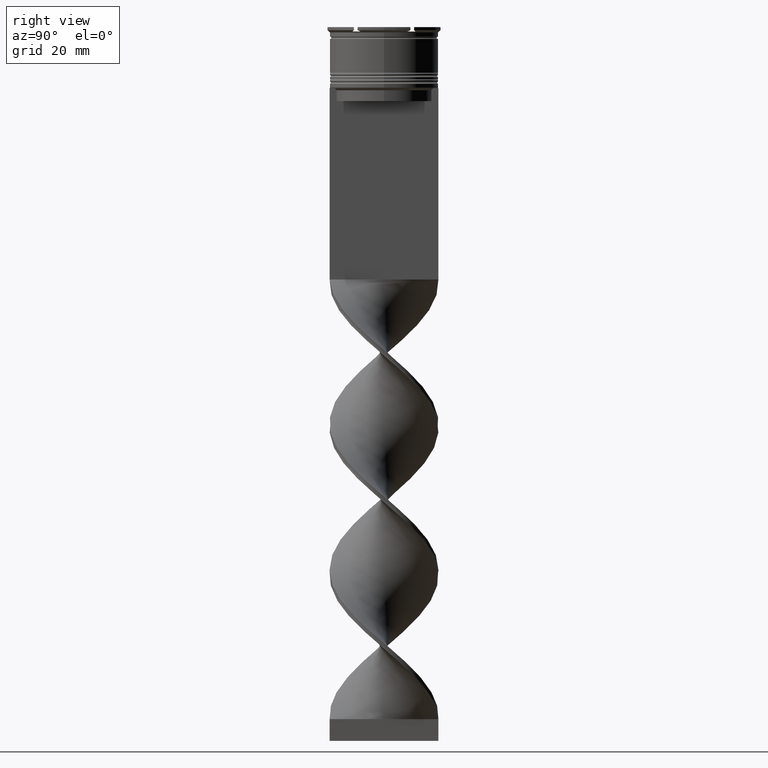
[diagram: clean part render]
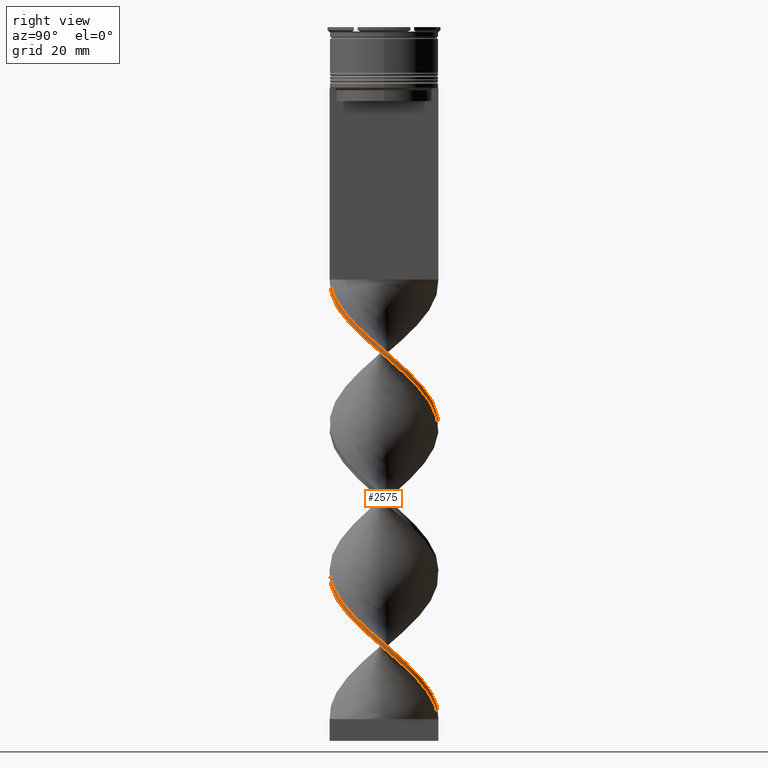
[diagram: same view with one face highlighted and labeled with its STEP entity id]
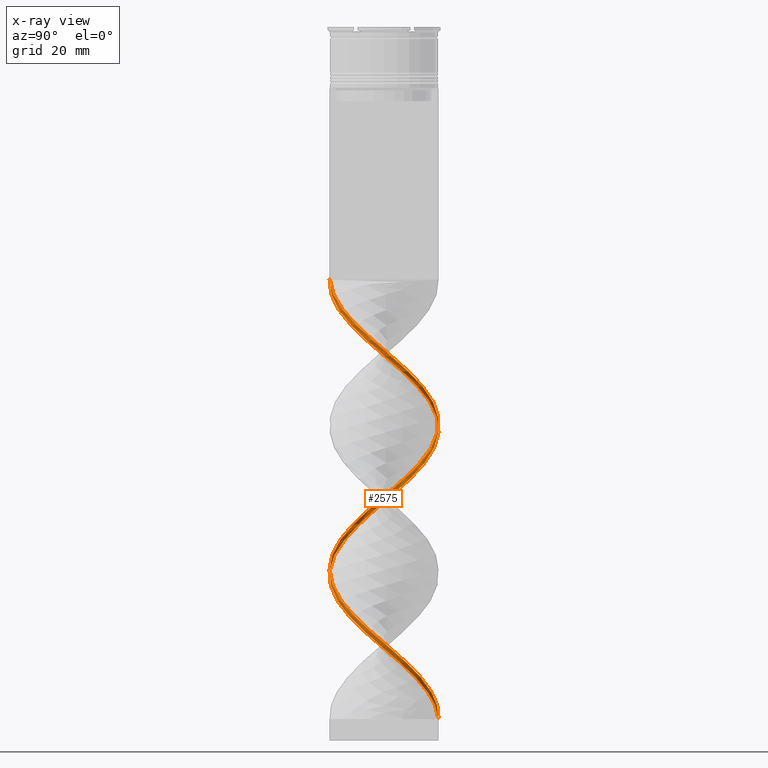
[diagram: x-ray of the same camera — body ghosted, the highlighted face saturated]
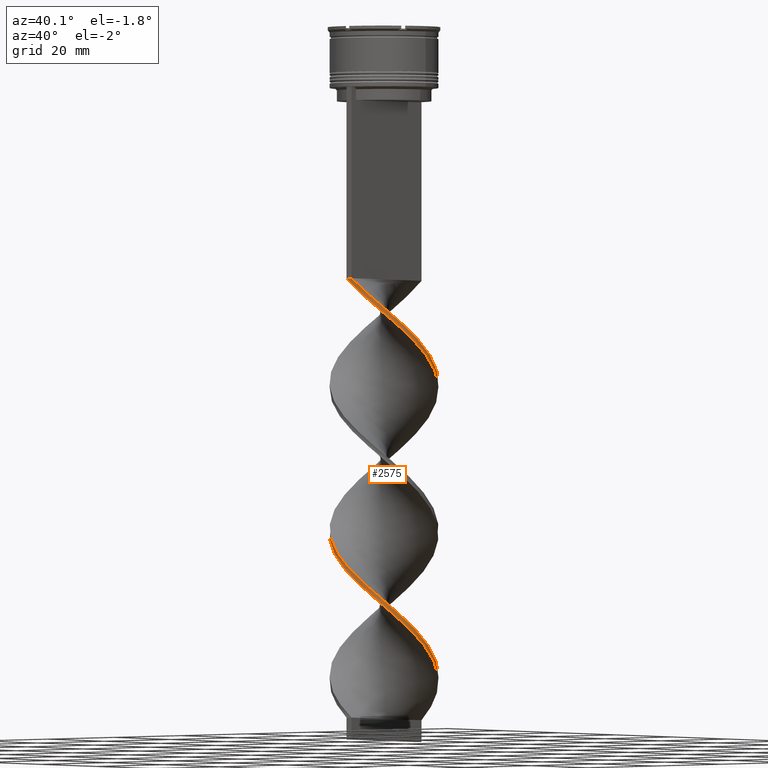
[diagram: same view with one face highlighted and labeled with its STEP entity id]
A machine part, right view. The second image highlights one B-rep face of the part: STEP entity #2575.
The next image is the same camera in x-ray: the body ghosted, the highlighted face saturated — about 1% of this face is hidden behind the body in this view.
A second angle (auxiliary view) of the same face is appended — the face is thin or edge-on in the first view.
In plain terms, the highlighted face is a freeform B-spline surface patch.
Its self-contained STEP definition (entity closure, byte-faithful):
#1 = CARTESIAN_POINT ( 'NONE',  ( -2.063802940820951726, 12.42117182355074689, -92.78888888888889142 ) ) ;
#24 = CARTESIAN_POINT ( 'NONE',  ( -3.332506835772342857, 12.07091124105925317, -93.91111111111111143 ) ) ;
#31 = CARTESIAN_POINT ( 'NONE',  ( 10.61168328023406637, -6.777681757703950538, -135.4333333333333371 ) ) ;
#46 = CARTESIAN_POINT ( 'NONE',  ( 7.954078399437126023, -9.671873490467488566, -132.0666666666666629 ) ) ;
#68 = CARTESIAN_POINT ( 'NONE',  ( 12.45098658456436169, -1.875559948311565917, -139.9222222222222172 ) ) ;
#73 = CARTESIAN_POINT ( 'NONE',  ( 12.45098658456436169, -1.875559948311565694, -139.9222222222222172 ) ) ;
#88 = CARTESIAN_POINT ( 'NONE',  ( -0.5638029408209662696, -12.57882817644926021, -124.2111111111111370 ) ) ;
#111 = CARTESIAN_POINT ( 'NONE',  ( -0.5638029408209509485, 12.57882817644926376, -92.78888888888889142 ) ) ;
#133 = CARTESIAN_POINT ( 'NONE',  ( 11.17548622105502254, -5.801146418745307010, -70.34444444444443434 ) ) ;
#137 = CARTESIAN_POINT ( 'NONE',  ( 7.849775853840624151, -9.845090710256194200, -65.85555555555555429 ) ) ;
#152 = CARTESIAN_POINT ( 'NONE',  ( 8.970633266239079973, 8.835866163051411704, -83.81111111111111711 ) ) ;
#158 = CARTESIAN_POINT ( 'NONE',  ( 12.11996919947063311, 3.149420042465477021, -78.20000000000000284 ) ) ;
#174 = CARTESIAN_POINT ( 'NONE',  ( 12.50992003955415832, 0.5607143693194618361, -75.95555555555554861 ) ) ;
#179 = CARTESIAN_POINT ( 'NONE',  ( 10.61168328023406460, 6.777681757703949650, -81.56666666666666288 ) ) ;
#192 = CARTESIAN_POINT ( 'NONE',  ( -11.65644370790820972, -4.576004816908206152, -111.8666666666666742 ) ) ;
#197 = CARTESIAN_POINT ( 'NONE',  ( 9.725148873555948370, -7.997891686931351884, -68.10000000000000853 ) ) ;
#207 = VERTEX_POINT ( 'NONE', #2902 ) ;
#213 = CARTESIAN_POINT ( 'NONE',  ( -7.849775853840619710, 9.845090710256194200, -99.52222222222223991 ) ) ;
#232 = CARTESIAN_POINT ( 'NONE',  ( 6.937523532635172074, -10.50788081788356187, -63.61111111111111427 ) ) ;
#246 = CARTESIAN_POINT ( 'NONE',  ( 11.78895181437690276, 4.423280136619390568, -79.32222222222222285 ) ) ;
#256 = CARTESIAN_POINT ( 'NONE',  ( 3.332506835772345966, -12.07091124105925317, -60.24444444444444713 ) ) ;
#261 = CARTESIAN_POINT ( 'NONE',  ( -3.166767928522322251, -12.18672937812252322, -121.9666666666666544 ) ) ;
#272 = CARTESIAN_POINT ( 'NONE',  ( 11.17548622105502076, -5.801146418745307898, -137.6777777777777487 ) ) ;
#278 = CARTESIAN_POINT ( 'NONE',  ( -8.970633266239076420, 8.835866163051417033, -99.52222222222223991 ) ) ;
#284 = CARTESIAN_POINT ( 'NONE',  ( 6.937523532635175627, 10.50788081788355832, -153.3888888888889142 ) ) ;
#292 = CARTESIAN_POINT ( 'NONE',  ( 0.5638029408209559445, -12.57882817644925844, -126.4555555555555770 ) ) ;
#299 = CARTESIAN_POINT ( 'NONE',  ( 12.11996919947063134, -3.149420042465478353, -71.46666666666668277 ) ) ;
#305 = CARTESIAN_POINT ( 'NONE',  ( 4.601210730723739317, 11.72065065856775945, -155.6333333333333258 ) ) ;
#315 = CARTESIAN_POINT ( 'NONE',  ( 11.65644370790820972, 4.576004816908207928, -145.5333333333333599 ) ) ;
#320 = CARTESIAN_POINT ( 'NONE',  ( -7.849775853840630369, -9.845090710256188871, -117.4777777777777885 ) ) ;
#334 = CARTESIAN_POINT ( 'NONE',  ( 9.725148873555946594, 7.997891686931350996, -81.56666666666664867 ) ) ;
#339 = CARTESIAN_POINT ( 'NONE',  ( 11.65644370790820972, 4.576004816908207928, -145.5333333333333599 ) ) ;
#345 = CARTESIAN_POINT ( 'NONE',  ( 11.78895181437690276, 4.423280136619390568, -146.6555555555555657 ) ) ;
#356 = CARTESIAN_POINT ( 'NONE',  ( 11.17548622105502254, 5.801146418745304345, -146.6555555555555657 ) ) ;
#377 = CARTESIAN_POINT ( 'NONE',  ( 5.769367131679453031, -11.11426573822566155, -129.8222222222222229 ) ) ;
#382 = CARTESIAN_POINT ( 'NONE',  ( 1.865285434671642317, 12.38277877728589083, -156.7555555555555600 ) ) ;
#397 = CARTESIAN_POINT ( 'NONE',  ( -8.787462363698288925, -8.921491198593770378, -116.3555555555555685 ) ) ;
#417 = CARTESIAN_POINT ( 'NONE',  ( 1.865285434671637432, -12.38277877728589260, -60.24444444444444713 ) ) ;
#424 = CARTESIAN_POINT ( 'NONE',  ( 11.78895181437690276, -4.423280136619393232, -137.6777777777777487 ) ) ;
#439 = CARTESIAN_POINT ( 'NONE',  ( -11.17548622105501721, 5.801146418745314115, -104.0111111111111200 ) ) ;
#445 = CARTESIAN_POINT ( 'NONE',  ( -12.11996919947063311, -3.149420042465475689, -111.8666666666666742 ) ) ;
#463 = CARTESIAN_POINT ( 'NONE',  ( -12.13740119476139867, 3.350863215071115508, -106.2555555555555742 ) ) ;
#466 = CARTESIAN_POINT ( 'NONE',  ( -1.865285434671634324, 12.38277877728589260, -93.91111111111111143 ) ) ;
#480 = CARTESIAN_POINT ( 'NONE',  ( 10.45031754730548279, -6.899519052838330779, -69.22222222222222854 ) ) ;
#485 = CARTESIAN_POINT ( 'NONE',  ( -11.65644370790820794, 4.576004816908209705, -105.1333333333333400 ) ) ;
#501 = CARTESIAN_POINT ( 'NONE',  ( -5.769367131679449479, 11.11426573822566333, -96.15555555555556566 ) ) ;
#508 = CARTESIAN_POINT ( 'NONE',  ( 0.7500000000000013323, 12.50000000000000000, -159.0000000000000000 ) ) ;
#523 = CARTESIAN_POINT ( 'NONE',  ( 6.937523532635174739, 10.50788081788355832, -86.05555555555557135 ) ) ;
#529 = LINE ( 'NONE', #1818, #3577 ) ;
#541 = CARTESIAN_POINT ( 'NONE',  ( 11.78895181437690276, 4.423280136619390568, -146.6555555555555657 ) ) ;
#553 = CARTESIAN_POINT ( 'NONE',  ( 1.865285434671642317, 12.38277877728589083, -156.7555555555555600 ) ) ;
#562 = CARTESIAN_POINT ( 'NONE',  ( 6.740552907874703514, -10.55355136890619860, -132.0666666666666629 ) ) ;
#568 = CARTESIAN_POINT ( 'NONE',  ( -12.45098658456436169, 1.875559948311569913, -106.2555555555555742 ) ) ;
#578 = CARTESIAN_POINT ( 'NONE',  ( 11.20031754730548457, 5.600480947161669221, -147.7777777777777715 ) ) ;
#591 = CARTESIAN_POINT ( 'NONE',  ( -7.954078399437124247, 9.671873490467490342, -98.40000000000001990 ) ) ;
#598 = CARTESIAN_POINT ( 'NONE',  ( 7.954078399437126023, 9.671873490467488566, -152.2666666666666799 ) ) ;
#606 = CARTESIAN_POINT ( 'NONE',  ( 0.7500000000000002220, -12.50000000000000000, -58.00000000000000000 ) ) ;
#610 = CARTESIAN_POINT ( 'NONE',  ( -10.61168328023406460, 6.777681757703952314, -101.7666666666666515 ) ) ;
#626 = CARTESIAN_POINT ( 'NONE',  ( 8.970633266239079973, -8.835866163051415256, -65.85555555555555429 ) ) ;
#633 = CARTESIAN_POINT ( 'NONE',  ( -12.13740119476140222, -3.350863215071100409, -110.7444444444444542 ) ) ;
#648 = CARTESIAN_POINT ( 'NONE',  ( -11.65644370790820972, -4.576004816908206152, -111.8666666666666742 ) ) ;
#661 = CARTESIAN_POINT ( 'NONE',  ( 12.45098658456435992, 1.875559948311562142, -144.4111111111111541 ) ) ;
#667 = EDGE_LOOP ( 'NONE', ( #1341, #3090, #1740, #1316 ) ) ;
#670 = CARTESIAN_POINT ( 'NONE',  ( 10.61168328023406815, -6.777681757703950538, -135.4333333333333371 ) ) ;
#675 = CARTESIAN_POINT ( 'NONE',  ( 11.20031754730548279, -5.600480947161672773, -136.5555555555555713 ) ) ;
#692 = CARTESIAN_POINT ( 'NONE',  ( 0.7500000000000002220, -12.50000000000000000, -125.3333333333333570 ) ) ;
#698 = CARTESIAN_POINT ( 'NONE',  ( 0.5638029408209590532, 12.57882817644925844, -157.8777777777777942 ) ) ;
#718 = CARTESIAN_POINT ( 'NONE',  ( -5.769367131679449479, 11.11426573822566333, -96.15555555555556566 ) ) ;
#724 = CARTESIAN_POINT ( 'NONE',  ( 11.17548622105502076, 5.801146418745305233, -146.6555555555555657 ) ) ;
#738 = CARTESIAN_POINT ( 'NONE',  ( 12.50992003955415655, -0.5607143693194658329, -141.0444444444444514 ) ) ;
#744 = CARTESIAN_POINT ( 'NONE',  ( 4.601210730723736653, -11.72065065856775767, -128.7000000000000171 ) ) ;
#755 = CARTESIAN_POINT ( 'NONE',  ( 9.791158273236575837, 7.806773960377678456, -82.68888888888889710 ) ) ;
#761 = CARTESIAN_POINT ( 'NONE',  ( 11.20031754730548457, 5.600480947161669221, -80.44444444444445708 ) ) ;
#777 = CARTESIAN_POINT ( 'NONE',  ( 0.5638029408209559445, -12.57882817644926021, -59.12222222222222712 ) ) ;
#782 = CARTESIAN_POINT ( 'NONE',  ( 5.631329961908785542, -11.26201202755620479, -63.61111111111112137 ) ) ;
#801 = CARTESIAN_POINT ( 'NONE',  ( 5.631329961908785542, -11.26201202755620123, -63.61111111111111427 ) ) ;
#804 = CARTESIAN_POINT ( 'NONE',  ( -0.7499999999999997780, -12.50000000000000000, -58.00000000000000000 ) ) ;
#817 = CARTESIAN_POINT ( 'NONE',  ( 12.50992003955415655, -0.5607143693194658329, -73.71111111111112280 ) ) ;
#823 = CARTESIAN_POINT ( 'NONE',  ( -10.61168328023406637, -6.777681757703947873, -115.2333333333333343 ) ) ;
#842 = CARTESIAN_POINT ( 'NONE',  ( 12.45098658456435992, 1.875559948311562142, -77.07777777777778283 ) ) ;
#849 = CARTESIAN_POINT ( 'NONE',  ( -0.2499999999999986955, 12.50000000000000000, -159.0000000000000000 ) ) ;
#863 = CARTESIAN_POINT ( 'NONE',  ( 5.769367131679455696, 11.11426573822565977, -154.5111111111111200 ) ) ;
#874 = CARTESIAN_POINT ( 'NONE',  ( -12.11996919947063311, -3.149420042465475689, -111.8666666666666742 ) ) ;
#880 = CARTESIAN_POINT ( 'NONE',  ( 11.20031754730548457, 5.600480947161669221, -147.7777777777777715 ) ) ;
#896 = CARTESIAN_POINT ( 'NONE',  ( -11.78895181437690454, -4.423280136619386127, -112.9888888888888943 ) ) ;
#903 = CARTESIAN_POINT ( 'NONE',  ( 12.45098658456435992, 1.875559948311562142, -144.4111111111111256 ) ) ;
#924 = CARTESIAN_POINT ( 'NONE',  ( 12.13740119476140045, 3.350863215071107515, -77.07777777777778283 ) ) ;
#929 = CARTESIAN_POINT ( 'NONE',  ( 12.56885349454395495, 0.7541312096726368042, -74.83333333333332860 ) ) ;
#941 = CARTESIAN_POINT ( 'NONE',  ( -3.332506835772352183, -12.07091124105925140, -123.0888888888888886 ) ) ;
#953 = CARTESIAN_POINT ( 'NONE',  ( 5.769367131679455696, 11.11426573822565977, -154.5111111111111200 ) ) ;
#964 = CARTESIAN_POINT ( 'NONE',  ( 12.11996919947063134, -3.149420042465478353, -138.8000000000000114 ) ) ;
#978 = CARTESIAN_POINT ( 'NONE',  ( 9.725148873555946594, -7.997891686931353661, -135.4333333333333371 ) ) ;
#990 = CARTESIAN_POINT ( 'NONE',  ( -3.166767928522322251, -12.18672937812252499, -121.9666666666666544 ) ) ;
#995 = CARTESIAN_POINT ( 'NONE',  ( 4.399048945215554340, 11.72437070283936045, -154.5111111111111200 ) ) ;
#1008 = CARTESIAN_POINT ( 'NONE',  ( -9.725148873555948370, -7.997891686931350996, -115.2333333333333343 ) ) ;
#1030 = CARTESIAN_POINT ( 'NONE',  ( -7.954078399437124247, 9.671873490467490342, -98.40000000000001990 ) ) ;
#1053 = CARTESIAN_POINT ( 'NONE',  ( 2.063802940820956167, -12.42117182355074334, -126.4555555555555628 ) ) ;
#1073 = CARTESIAN_POINT ( 'NONE',  ( 4.399048945215551676, -11.72437070283936222, -62.48888888888889426 ) ) ;
#1078 = CARTESIAN_POINT ( 'NONE',  ( 10.45031754730548279, -6.899519052838330779, -69.22222222222222854 ) ) ;
#1089 = CARTESIAN_POINT ( 'NONE',  ( 11.65644370790820794, -4.576004816908208817, -71.46666666666668277 ) ) ;
#1095 = CARTESIAN_POINT ( 'NONE',  ( -3.166767928522318254, 12.18672937812252499, -95.03333333333331723 ) ) ;
#1107 = VERTEX_POINT ( 'NONE', #1825 ) ;
#1115 = CARTESIAN_POINT ( 'NONE',  ( -6.937523532635176515, -10.50788081788355832, -119.7222222222222143 ) ) ;
#1119 = CARTESIAN_POINT ( 'NONE',  ( 2.063802940820959275, 12.42117182355074334, -90.54444444444445139 ) ) ;
#1132 = CARTESIAN_POINT ( 'NONE',  ( 12.45098658456436169, -1.875559948311565694, -72.58888888888890278 ) ) ;
#1134 = CARTESIAN_POINT ( 'NONE',  ( 0.7500000000000013323, 12.50000000000000000, -91.66666666666667140 ) ) ;
#1142 = CARTESIAN_POINT ( 'NONE',  ( 0.7500000000000013323, 12.50000000000000000, -159.0000000000000000 ) ) ;
#1148 = CARTESIAN_POINT ( 'NONE',  ( 7.954078399437126023, -9.671873490467488566, -64.73333333333333428 ) ) ;
#1153 = CARTESIAN_POINT ( 'NONE',  ( 1.865285434671637432, -12.38277877728589260, -60.24444444444444713 ) ) ;
#1160 = CARTESIAN_POINT ( 'NONE',  ( 0.2500000000000013323, 12.50000000000000000, -159.0000000000000000 ) ) ;
#1175 = CARTESIAN_POINT ( 'NONE',  ( 12.13740119476140045, -3.350863215071111068, -139.9222222222222172 ) ) ;
#1192 = CARTESIAN_POINT ( 'NONE',  ( 12.35312734465267681, -2.052497212371875435, -141.0444444444444514 ) ) ;
#1206 = CARTESIAN_POINT ( 'NONE',  ( 12.45098658456435992, 1.875559948311562142, -77.07777777777778283 ) ) ;
#1207 = B_SPLINE_CURVE_WITH_KNOTS ( 'NONE', 3,
 ( #3729, #849, #1160, #1142 ),
 .UNSPECIFIED., .F., .F.,
 ( 4, 4 ),
 ( 0.000000000000000000, 1.000000000000000000 ),
 .UNSPECIFIED. ) ;
#1215 = CARTESIAN_POINT ( 'NONE',  ( 2.063802940820956167, -12.42117182355074334, -59.12222222222222712 ) ) ;
#1222 = CARTESIAN_POINT ( 'NONE',  ( -9.725148873555948370, -7.997891686931350108, -115.2333333333333343 ) ) ;
#1230 = CARTESIAN_POINT ( 'NONE',  ( 1.865285434671637432, -12.38277877728589260, -127.5777777777777828 ) ) ;
#1239 = CARTESIAN_POINT ( 'NONE',  ( 11.20031754730548279, -5.600480947161672773, -69.22222222222222854 ) ) ;
#1246 = CARTESIAN_POINT ( 'NONE',  ( 6.937523532635171186, -10.50788081788356187, -63.61111111111112137 ) ) ;
#1253 = CARTESIAN_POINT ( 'NONE',  ( 10.61168328023406637, 6.777681757703949650, -148.8999999999999488 ) ) ;
#1261 = CARTESIAN_POINT ( 'NONE',  ( 7.954078399437126023, 9.671873490467488566, -152.2666666666666799 ) ) ;
#1266 = CARTESIAN_POINT ( 'NONE',  ( -11.20031754730548101, 5.600480947161677214, -102.8888888888888857 ) ) ;
#1273 = CARTESIAN_POINT ( 'NONE',  ( 12.50992003955415832, 0.5607143693194618361, -143.2888888888889198 ) ) ;
#1274 =( BOUNDED_SURFACE ( )  B_SPLINE_SURFACE ( 1, 2, ( 
 ( #606, #1215, #256, #2847, #3170, #232, #3154, #626, #1537, #4108, #1239, #4088, #1907, #4051, #2513, #3800, #1500, #924, #3487, #2301, #2972, #334, #2667, #1598, #3552, #3278, #2255, #2906, #2601, #3256, #2624, #1, #24, #2021, #718, #3885, #1030, #3530, #3862, #2577, #1306, #1328, #2928, #1686, #2004, #1616, #2890, #2645, #648, #3597, #3930, #1008, #397, #3907, #1282, #2328, #1931, #990, #3574, #88, #692, #1053, #1981, #2282, #377, #2349, #46, #1369, #1953, #670, #1663, #2950, #964, #68, #738, #1347, #3231, #3618, #315, #356, #3838, #3210, #1640, #3989, #3682, #2092, #1433, #2432, #553, #2706, #2751 ),
 ( #4011, #777, #417, #3322, #1073, #801, #3435, #3364, #3016, #3949, #480, #133, #1089, #1770, #3055, #2164, #174, #1206, #3967, #246, #1411, #1708, #755, #152, #3699, #2994, #2045, #2727, #3346, #1841, #1134, #111, #3129, #2070, #1530, #1393, #1458, #2687, #2822, #2388, #2413, #439, #4080, #463, #2505, #3034, #3298, #3769, #874, #896, #2366, #3637, #1728, #3659, #1748, #1115, #3520, #1293, #1900, #2210, #2247, #2590, #1230, #1591, #3851, #2227, #3827, #4139, #2529, #978, #3456, #3148, #3204, #2271, #1628, #3497, #1273, #661, #3480, #345, #578, #1253, #3544, #4100, #598, #284, #953, #305, #1863, #1881, #3878 ) ),
 .UNSPECIFIED., .F., .F., .F. ) 
 B_SPLINE_SURFACE_WITH_KNOTS ( ( 2, 2 ),
 ( 3, 2, 2, 2, 2, 2, 2, 2, 2, 2, 2, 2, 2, 2, 2, 2, 2, 2, 2, 2, 2, 2, 2, 2, 2, 2, 2, 2, 2, 2, 2, 2, 2, 2, 2, 2, 2, 2, 2, 2, 2, 2, 2, 2, 2, 3 ),
 ( 0.000000000000000000, 1.000000000000000000 ),
 ( 0.000000000000000000, 0.01666666666666666644, 0.03333333333333333287, 0.05000000000000000278, 0.06666666666666666574, 0.08333333333333332871, 0.1000000000000000056, 0.1166666666666666685, 0.1333333333333333315, 0.1499999999999999944, 0.1666666666666666574, 0.1833333333333333204, 0.2000000000000000111, 0.2166666666666666741, 0.2333333333333333370, 0.2500000000000000000, 0.2666666666666666630, 0.2833333333333333259, 0.2999999999999999889, 0.3166666666666666519, 0.3333333333333333148, 0.3499999999999999778, 0.3666666666666666408, 0.3833333333333333592, 0.4000000000000000222, 0.4166666666666666852, 0.4333333333333333481, 0.4500000000000000111, 0.4666666666666666741, 0.4833333333333333370, 0.5000000000000000000, 0.5166666666666667185, 0.5333333333333333259, 0.5500000000000000444, 0.5666666666666666519, 0.5833333333333333703, 0.5999999999999999778, 0.6166666666666666963, 0.6333333333333333037, 0.6500000000000000222, 0.6666666666666666297, 0.6833333333333333481, 0.6999999999999999556, 0.7166666666666666741, 0.7333333333333332815, 0.7500000000000000000 ),
 .UNSPECIFIED. ) 
 GEOMETRIC_REPRESENTATION_ITEM ( )  RATIONAL_B_SPLINE_SURFACE ( (
 ( 1.000000000000000000, 0.9945218953682732899, 1.000000000000000000, 0.9945218953682732899, 1.000000000000000000, 0.9945218953682732899, 1.000000000000000000, 0.9945218953682732899, 1.000000000000000000, 0.9945218953682732899, 1.000000000000000000, 0.9945218953682732899, 1.000000000000000000, 0.9945218953682732899, 1.000000000000000000, 0.9945218953682732899, 1.000000000000000000, 0.9945218953682732899, 1.000000000000000000, 0.9945218953682732899, 1.000000000000000000, 0.9945218953682732899, 1.000000000000000000, 0.9945218953682732899, 1.000000000000000000, 0.9945218953682732899, 1.000000000000000000, 0.9945218953682732899, 1.000000000000000000, 0.9945218953682732899, 1.000000000000000000, 0.9945218953682732899, 1.000000000000000000, 0.9945218953682732899, 1.000000000000000000, 0.9945218953682732899, 1.000000000000000000, 0.9945218953682732899, 1.000000000000000000, 0.9945218953682732899, 1.000000000000000000, 0.9945218953682732899, 1.000000000000000000, 0.9945218953682732899, 1.000000000000000000, 0.9945218953682732899, 1.000000000000000000, 0.9945218953682732899, 1.000000000000000000, 0.9945218953682732899, 1.000000000000000000, 0.9945218953682732899, 1.000000000000000000, 0.9945218953682732899, 1.000000000000000000, 0.9945218953682732899, 1.000000000000000000, 0.9945218953682732899, 1.000000000000000000, 0.9945218953682732899, 1.000000000000000000, 0.9945218953682732899, 1.000000000000000000, 0.9945218953682732899, 1.000000000000000000, 0.9945218953682732899, 1.000000000000000000, 0.9945218953682732899, 1.000000000000000000, 0.9945218953682732899, 1.000000000000000000, 0.9945218953682732899, 1.000000000000000000, 0.9945218953682732899, 1.000000000000000000, 0.9945218953682732899, 1.000000000000000000, 0.9945218953682732899, 1.000000000000000000, 0.9945218953682732899, 1.000000000000000000, 0.9945218953682732899, 1.000000000000000000, 0.9945218953682732899, 1.000000000000000000, 0.9945218953682732899, 1.000000000000000000, 0.9945218953682732899, 1.000000000000000000, 0.9945218953682732899, 1.000000000000000000),
 ( 1.000000000000000000, 0.9945218953682732899, 1.000000000000000000, 0.9945218953682732899, 1.000000000000000000, 0.9945218953682732899, 1.000000000000000000, 0.9945218953682732899, 1.000000000000000000, 0.9945218953682732899, 1.000000000000000000, 0.9945218953682732899, 1.000000000000000000, 0.9945218953682732899, 1.000000000000000000, 0.9945218953682732899, 1.000000000000000000, 0.9945218953682732899, 1.000000000000000000, 0.9945218953682732899, 1.000000000000000000, 0.9945218953682732899, 1.000000000000000000, 0.9945218953682732899, 1.000000000000000000, 0.9945218953682732899, 1.000000000000000000, 0.9945218953682732899, 1.000000000000000000, 0.9945218953682732899, 1.000000000000000000, 0.9945218953682732899, 1.000000000000000000, 0.9945218953682732899, 1.000000000000000000, 0.9945218953682732899, 1.000000000000000000, 0.9945218953682732899, 1.000000000000000000, 0.9945218953682732899, 1.000000000000000000, 0.9945218953682732899, 1.000000000000000000, 0.9945218953682732899, 1.000000000000000000, 0.9945218953682732899, 1.000000000000000000, 0.9945218953682732899, 1.000000000000000000, 0.9945218953682732899, 1.000000000000000000, 0.9945218953682732899, 1.000000000000000000, 0.9945218953682732899, 1.000000000000000000, 0.9945218953682732899, 1.000000000000000000, 0.9945218953682732899, 1.000000000000000000, 0.9945218953682732899, 1.000000000000000000, 0.9945218953682732899, 1.000000000000000000, 0.9945218953682732899, 1.000000000000000000, 0.9945218953682732899, 1.000000000000000000, 0.9945218953682732899, 1.000000000000000000, 0.9945218953682732899, 1.000000000000000000, 0.9945218953682732899, 1.000000000000000000, 0.9945218953682732899, 1.000000000000000000, 0.9945218953682732899, 1.000000000000000000, 0.9945218953682732899, 1.000000000000000000, 0.9945218953682732899, 1.000000000000000000, 0.9945218953682732899, 1.000000000000000000, 0.9945218953682732899, 1.000000000000000000, 0.9945218953682732899, 1.000000000000000000, 0.9945218953682732899, 1.000000000000000000, 0.9945218953682732899, 1.000000000000000000) ) ) 
 REPRESENTATION_ITEM ( '' )  SURFACE ( )  );
#1280 = VERTEX_POINT ( 'NONE', #3136 ) ;
#1282 = CARTESIAN_POINT ( 'NONE',  ( -6.740552907874707067, -10.55355136890619860, -118.6000000000000085 ) ) ;
#1293 = CARTESIAN_POINT ( 'NONE',  ( -4.601210730723740205, -11.72065065856775945, -121.9666666666666544 ) ) ;
#1306 = CARTESIAN_POINT ( 'NONE',  ( -11.20031754730548101, 5.600480947161677214, -102.8888888888888857 ) ) ;
#1312 = CARTESIAN_POINT ( 'NONE',  ( 10.45031754730548457, 6.899519052838327227, -147.7777777777777715 ) ) ;
#1316 = ORIENTED_EDGE ( 'NONE', *, *, #1966, .F. ) ;
#1328 = CARTESIAN_POINT ( 'NONE',  ( -11.78895181437689743, 4.423280136619401226, -104.0111111111111200 ) ) ;
#1334 = CARTESIAN_POINT ( 'NONE',  ( 8.970633266239079973, -8.835866163051415256, -133.1888888888889255 ) ) ;
#1341 = ORIENTED_EDGE ( 'NONE', *, *, #2262, .T. ) ;
#1347 = CARTESIAN_POINT ( 'NONE',  ( 12.56885349454395495, 0.7541312096726368042, -142.1666666666666856 ) ) ;
#1352 = CARTESIAN_POINT ( 'NONE',  ( 3.332506835772345966, -12.07091124105925317, -127.5777777777777828 ) ) ;
#1369 = CARTESIAN_POINT ( 'NONE',  ( 8.970633266239079973, -8.835866163051415256, -133.1888888888889255 ) ) ;
#1375 = CARTESIAN_POINT ( 'NONE',  ( 12.11996919947063134, -3.149420042465478353, -138.8000000000000114 ) ) ;
#1393 = CARTESIAN_POINT ( 'NONE',  ( -5.631329961908782877, 11.26201202755620123, -97.27777777777778567 ) ) ;
#1411 = CARTESIAN_POINT ( 'NONE',  ( 11.20031754730548457, 5.600480947161669221, -80.44444444444445708 ) ) ;
#1415 = CARTESIAN_POINT ( 'NONE',  ( 11.17548622105502076, -5.801146418745307898, -70.34444444444444855 ) ) ;
#1433 = CARTESIAN_POINT ( 'NONE',  ( 4.399048945215554340, 11.72437070283936045, -154.5111111111111200 ) ) ;
#1439 = CARTESIAN_POINT ( 'NONE',  ( -8.970633266239085302, -8.835866163051406375, -117.4777777777777885 ) ) ;
#1458 = CARTESIAN_POINT ( 'NONE',  ( -6.740552907874702626, 10.55355136890619860, -98.40000000000001990 ) ) ;
#1464 = CARTESIAN_POINT ( 'NONE',  ( -4.399048945215547235, 11.72437070283936222, -96.15555555555556566 ) ) ;
#1476 = CARTESIAN_POINT ( 'NONE',  ( -12.56885349454395495, -0.7541312096726352499, -108.5000000000000000 ) ) ;
#1500 = CARTESIAN_POINT ( 'NONE',  ( 12.35312734465267859, 2.052497212371872326, -75.95555555555554861 ) ) ;
#1519 = CARTESIAN_POINT ( 'NONE',  ( 3.166767928522319586, -12.18672937812252322, -128.7000000000000171 ) ) ;
#1530 = CARTESIAN_POINT ( 'NONE',  ( -4.399048945215547235, 11.72437070283936222, -96.15555555555556566 ) ) ;
#1537 = CARTESIAN_POINT ( 'NONE',  ( 9.791158273236570508, -7.806773960377682009, -66.97777777777777430 ) ) ;
#1542 = CARTESIAN_POINT ( 'NONE',  ( -4.399048945215561446, -11.72437070283935689, -120.8444444444444485 ) ) ;
#1564 = CARTESIAN_POINT ( 'NONE',  ( 10.61168328023406637, -6.777681757703950538, -68.10000000000000853 ) ) ;
#1577 = CARTESIAN_POINT ( 'NONE',  ( -4.601210730723740205, -11.72065065856775767, -121.9666666666666544 ) ) ;
#1584 = CARTESIAN_POINT ( 'NONE',  ( 12.13740119476140045, 3.350863215071107515, -77.07777777777778283 ) ) ;
#1591 = CARTESIAN_POINT ( 'NONE',  ( 3.166767928522319586, -12.18672937812252499, -128.6999999999999886 ) ) ;
#1598 = CARTESIAN_POINT ( 'NONE',  ( 7.849775853840625039, 9.845090710256194200, -83.81111111111111711 ) ) ;
#1603 = CARTESIAN_POINT ( 'NONE',  ( 11.17548622105502076, 5.801146418745305233, -79.32222222222222285 ) ) ;
#1616 = CARTESIAN_POINT ( 'NONE',  ( -12.56885349454395495, -0.7541312096726353609, -108.5000000000000000 ) ) ;
#1628 = CARTESIAN_POINT ( 'NONE',  ( 12.35312734465267681, -2.052497212371875435, -141.0444444444444514 ) ) ;
#1640 = CARTESIAN_POINT ( 'NONE',  ( 8.787462363698287149, 8.921491198593770378, -150.0222222222222115 ) ) ;
#1663 = CARTESIAN_POINT ( 'NONE',  ( 11.20031754730548279, -5.600480947161672773, -136.5555555555555713 ) ) ;
#1686 = CARTESIAN_POINT ( 'NONE',  ( -12.45098658456436169, 1.875559948311569691, -106.2555555555555742 ) ) ;
#1692 = CARTESIAN_POINT ( 'NONE',  ( 2.063802940820955723, -12.42117182355074334, -126.4555555555555770 ) ) ;
#1708 = CARTESIAN_POINT ( 'NONE',  ( 10.61168328023406637, 6.777681757703949650, -81.56666666666664867 ) ) ;
#1728 = CARTESIAN_POINT ( 'NONE',  ( -9.791158273236577614, -7.806773960377676680, -116.3555555555555685 ) ) ;
#1732 = CARTESIAN_POINT ( 'NONE',  ( -12.50992003955415832, -0.5607143693194575063, -109.6222222222222342 ) ) ;
#1740 = ORIENTED_EDGE ( 'NONE', *, *, #2231, .F. ) ;
#1748 = CARTESIAN_POINT ( 'NONE',  ( -7.954078399437126912, -9.671873490467486789, -118.6000000000000085 ) ) ;
#1752 = CARTESIAN_POINT ( 'NONE',  ( 0.7500000000000013323, 12.50000000000000000, -91.66666666666667140 ) ) ;
#1770 = CARTESIAN_POINT ( 'NONE',  ( 12.13740119476140045, -3.350863215071111068, -72.58888888888890278 ) ) ;
#1776 = CARTESIAN_POINT ( 'NONE',  ( -12.45098658456436169, -1.875559948311554592, -110.7444444444444542 ) ) ;
#1784 = DIRECTION ( 'NONE',  ( -1.000000000000000000, 0.000000000000000000, 0.000000000000000000 ) ) ;
#1789 = CARTESIAN_POINT ( 'NONE',  ( -0.7499999999999986677, 12.50000000000000000, -91.66666666666667140 ) ) ;
#1812 = CARTESIAN_POINT ( 'NONE',  ( 4.601210730723738429, 11.72065065856775767, -88.29999999999998295 ) ) ;
#1818 = CARTESIAN_POINT ( 'NONE',  ( 0.7500000000000002220, -12.50000000000000000, -58.00000000000000000 ) ) ;
#1825 = CARTESIAN_POINT ( 'NONE',  ( -0.7499999999999986677, 12.50000000000000000, -159.0000000000000000 ) ) ;
#1827 = CARTESIAN_POINT ( 'NONE',  ( 3.332506835772350406, 12.07091124105925140, -156.7555555555555600 ) ) ;
#1841 = CARTESIAN_POINT ( 'NONE',  ( 2.063802940820959275, 12.42117182355074334, -90.54444444444445139 ) ) ;
#1856 = CARTESIAN_POINT ( 'NONE',  ( -3.332506835772342857, 12.07091124105925317, -93.91111111111111143 ) ) ;
#1863 = CARTESIAN_POINT ( 'NONE',  ( 3.332506835772350406, 12.07091124105925140, -156.7555555555555600 ) ) ;
#1876 = CARTESIAN_POINT ( 'NONE',  ( 11.20031754730548279, -5.600480947161672773, -69.22222222222222854 ) ) ;
#1881 = CARTESIAN_POINT ( 'NONE',  ( 2.063802940820959275, 12.42117182355074334, -157.8777777777777942 ) ) ;
#1886 = CARTESIAN_POINT ( 'NONE',  ( 12.50992003955415832, 0.5607143693194618361, -143.2888888888889198 ) ) ;
#1893 = CARTESIAN_POINT ( 'NONE',  ( -12.11996919947063134, 3.149420042465479241, -105.1333333333333400 ) ) ;
#1900 = CARTESIAN_POINT ( 'NONE',  ( -3.332506835772352183, -12.07091124105925140, -123.0888888888888886 ) ) ;
#1907 = CARTESIAN_POINT ( 'NONE',  ( 12.11996919947063134, -3.149420042465478353, -71.46666666666668277 ) ) ;
#1915 = CARTESIAN_POINT ( 'NONE',  ( -10.45031754730548812, -6.899519052838321009, -114.1111111111111285 ) ) ;
#1931 = CARTESIAN_POINT ( 'NONE',  ( -4.399048945215561446, -11.72437070283935689, -120.8444444444444485 ) ) ;
#1936 = CARTESIAN_POINT ( 'NONE',  ( -0.7499999999999986677, 12.50000000000000000, -159.0000000000000000 ) ) ;
#1953 = CARTESIAN_POINT ( 'NONE',  ( 9.791158273236570508, -7.806773960377682009, -134.3111111111111313 ) ) ;
#1957 = CARTESIAN_POINT ( 'NONE',  ( 9.791158273236570508, -7.806773960377682009, -134.3111111111111313 ) ) ;
#1966 = EDGE_CURVE ( 'NONE', #1280, #1107, #3586, .T. ) ;
#1981 = CARTESIAN_POINT ( 'NONE',  ( 3.332506835772345966, -12.07091124105925317, -127.5777777777777828 ) ) ;
#2004 = CARTESIAN_POINT ( 'NONE',  ( -12.50992003955415832, 0.5607143693194728273, -107.3777777777777942 ) ) ;
#2010 = CARTESIAN_POINT ( 'NONE',  ( 12.56885349454395495, 0.7541312096726368042, -142.1666666666666856 ) ) ;
#2021 = CARTESIAN_POINT ( 'NONE',  ( -4.601210730723735765, 11.72065065856776123, -95.03333333333331723 ) ) ;
#2045 = CARTESIAN_POINT ( 'NONE',  ( 5.769367131679455696, 11.11426573822565977, -87.17777777777779136 ) ) ;
#2050 = CARTESIAN_POINT ( 'NONE',  ( -5.631329961908782877, 11.26201202755620479, -97.27777777777779988 ) ) ;
#2070 = CARTESIAN_POINT ( 'NONE',  ( -3.166767928522318254, 12.18672937812252677, -95.03333333333331723 ) ) ;
#2075 = CARTESIAN_POINT ( 'NONE',  ( 3.166767928522319586, -12.18672937812252322, -61.36666666666666003 ) ) ;
#2092 = CARTESIAN_POINT ( 'NONE',  ( 5.631329961908789983, 11.26201202755619768, -153.3888888888889142 ) ) ;
#2096 = CARTESIAN_POINT ( 'NONE',  ( 11.65644370790820794, -4.576004816908208817, -71.46666666666668277 ) ) ;
#2107 = CARTESIAN_POINT ( 'NONE',  ( 9.725148873555948370, 7.997891686931350108, -81.56666666666666288 ) ) ;
#2116 = CARTESIAN_POINT ( 'NONE',  ( 4.399048945215551676, -11.72437070283936222, -62.48888888888889426 ) ) ;
#2135 = CARTESIAN_POINT ( 'NONE',  ( 11.78895181437690276, 4.423280136619390568, -79.32222222222222285 ) ) ;
#2153 = CARTESIAN_POINT ( 'NONE',  ( 4.601210730723738429, 11.72065065856775767, -155.6333333333333542 ) ) ;
#2164 = CARTESIAN_POINT ( 'NONE',  ( 12.56885349454395495, -0.7541312096726379144, -74.83333333333334281 ) ) ;
#2181 = CARTESIAN_POINT ( 'NONE',  ( 8.970633266239079973, -8.835866163051415256, -65.85555555555555429 ) ) ;
#2196 = CARTESIAN_POINT ( 'NONE',  ( 8.970633266239079973, 8.835866163051411704, -151.1444444444444457 ) ) ;
#2202 = CARTESIAN_POINT ( 'NONE',  ( 5.769367131679453031, -11.11426573822566155, -62.48888888888889426 ) ) ;
#2210 = CARTESIAN_POINT ( 'NONE',  ( -2.063802940820966381, -12.42117182355074334, -124.2111111111111370 ) ) ;
#2217 = CARTESIAN_POINT ( 'NONE',  ( 12.11996919947063311, 3.149420042465477021, -145.5333333333333599 ) ) ;
#2222 = CARTESIAN_POINT ( 'NONE',  ( 11.65644370790820972, 4.576004816908207928, -78.20000000000000284 ) ) ;
#2227 = CARTESIAN_POINT ( 'NONE',  ( 5.631329961908785542, -11.26201202755620123, -130.9444444444444287 ) ) ;
#2231 = EDGE_CURVE ( 'NONE', #1107, #3289, #1207, .T. ) ;
#2233 = FACE_OUTER_BOUND ( 'NONE', #667, .T. ) ;
#2240 = CARTESIAN_POINT ( 'NONE',  ( -2.063802940820951726, 12.42117182355074689, -92.78888888888889142 ) ) ;
#2247 = CARTESIAN_POINT ( 'NONE',  ( -0.7499999999999997780, -12.50000000000000000, -125.3333333333333570 ) ) ;
#2255 = CARTESIAN_POINT ( 'NONE',  ( 4.399048945215554340, 11.72437070283936045, -87.17777777777779136 ) ) ;
#2262 = EDGE_CURVE ( 'NONE', #1280, #207, #529, .T. ) ;
#2263 = CARTESIAN_POINT ( 'NONE',  ( 0.7500000000000002220, -12.50000000000000000, -125.3333333333333570 ) ) ;
#2271 = CARTESIAN_POINT ( 'NONE',  ( 12.13740119476140045, -3.350863215071111068, -139.9222222222222172 ) ) ;
#2282 = CARTESIAN_POINT ( 'NONE',  ( 4.601210730723737541, -11.72065065856775945, -128.6999999999999886 ) ) ;
#2301 = CARTESIAN_POINT ( 'NONE',  ( 11.17548622105502254, 5.801146418745304345, -79.32222222222222285 ) ) ;
#2328 = CARTESIAN_POINT ( 'NONE',  ( -5.631329961908790871, -11.26201202755619768, -119.7222222222222143 ) ) ;
#2349 = CARTESIAN_POINT ( 'NONE',  ( 6.937523532635172074, -10.50788081788356187, -130.9444444444444287 ) ) ;
#2366 = CARTESIAN_POINT ( 'NONE',  ( -11.20031754730548634, -5.600480947161663003, -114.1111111111111285 ) ) ;
#2371 = CARTESIAN_POINT ( 'NONE',  ( 12.50992003955415832, 0.5607143693194618361, -75.95555555555554861 ) ) ;
#2388 = CARTESIAN_POINT ( 'NONE',  ( -9.725148873555944817, 7.997891686931354549, -101.7666666666666515 ) ) ;
#2393 = CARTESIAN_POINT ( 'NONE',  ( -10.45031754730548101, 6.899519052838334332, -102.8888888888888857 ) ) ;
#2413 = CARTESIAN_POINT ( 'NONE',  ( -10.45031754730548101, 6.899519052838334332, -102.8888888888888857 ) ) ;
#2429 = CARTESIAN_POINT ( 'NONE',  ( -12.50992003955415832, 0.5607143693194728273, -107.3777777777777942 ) ) ;
#2432 = CARTESIAN_POINT ( 'NONE',  ( 3.166767928522320918, 12.18672937812252499, -155.6333333333333258 ) ) ;
#2435 = CARTESIAN_POINT ( 'NONE',  ( 7.954078399437126023, 9.671873490467488566, -84.93333333333333712 ) ) ;
#2447 = CARTESIAN_POINT ( 'NONE',  ( 6.740552907874705291, 10.55355136890619860, -84.93333333333333712 ) ) ;
#2457 = CARTESIAN_POINT ( 'NONE',  ( 12.35312734465267681, -2.052497212371875435, -73.71111111111112280 ) ) ;
#2476 = CARTESIAN_POINT ( 'NONE',  ( -6.937523532635175627, -10.50788081788355832, -119.7222222222222143 ) ) ;
#2505 = CARTESIAN_POINT ( 'NONE',  ( -12.35312734465267503, 2.052497212371882540, -107.3777777777777942 ) ) ;
#2513 = CARTESIAN_POINT ( 'NONE',  ( 12.50992003955415655, -0.5607143693194658329, -73.71111111111112280 ) ) ;
#2521 = CARTESIAN_POINT ( 'NONE',  ( -0.5638029408209662696, -12.57882817644925844, -124.2111111111111370 ) ) ;
#2529 = CARTESIAN_POINT ( 'NONE',  ( 8.787462363698281820, -8.921491198593773930, -134.3111111111111313 ) ) ;
#2538 = CARTESIAN_POINT ( 'NONE',  ( -5.769367131679462801, -11.11426573822565622, -120.8444444444444485 ) ) ;
#2553 = EDGE_CURVE ( 'NONE', #207, #3289, #4009, .T. ) ;
#2561 = CARTESIAN_POINT ( 'NONE',  ( 10.45031754730548457, 6.899519052838327227, -80.44444444444445708 ) ) ;
#2575 = ADVANCED_FACE ( 'NONE', ( #2233 ), #1274, .T. ) ;
#2577 = CARTESIAN_POINT ( 'NONE',  ( -10.61168328023406637, 6.777681757703952314, -101.7666666666666515 ) ) ;
#2590 = CARTESIAN_POINT ( 'NONE',  ( 0.5638029408209559445, -12.57882817644926021, -126.4555555555555628 ) ) ;
#2601 = CARTESIAN_POINT ( 'NONE',  ( 1.865285434671642317, 12.38277877728589083, -89.42222222222223138 ) ) ;
#2609 = CARTESIAN_POINT ( 'NONE',  ( 9.725148873555948370, 7.997891686931350108, -148.8999999999999773 ) ) ;
#2624 = CARTESIAN_POINT ( 'NONE',  ( -0.7499999999999986677, 12.50000000000000000, -91.66666666666667140 ) ) ;
#2629 = CARTESIAN_POINT ( 'NONE',  ( 7.849775853840625039, 9.845090710256192423, -151.1444444444444457 ) ) ;
#2645 = CARTESIAN_POINT ( 'NONE',  ( -12.13740119476140222, -3.350863215071100853, -110.7444444444444542 ) ) ;
#2649 = CARTESIAN_POINT ( 'NONE',  ( 6.740552907874705291, 10.55355136890619860, -152.2666666666666799 ) ) ;
#2667 = CARTESIAN_POINT ( 'NONE',  ( 8.787462363698287149, 8.921491198593770378, -82.68888888888889710 ) ) ;
#2672 = CARTESIAN_POINT ( 'NONE',  ( 12.50992003955415655, -0.5607143693194658329, -141.0444444444444514 ) ) ;
#2687 = CARTESIAN_POINT ( 'NONE',  ( -7.849775853840618822, 9.845090710256195976, -99.52222222222223991 ) ) ;
#2706 = CARTESIAN_POINT ( 'NONE',  ( 0.5638029408209590532, 12.57882817644926021, -157.8777777777777942 ) ) ;
#2710 = CARTESIAN_POINT ( 'NONE',  ( 3.332506835772350406, 12.07091124105925140, -89.42222222222223138 ) ) ;
#2727 = CARTESIAN_POINT ( 'NONE',  ( 4.601210730723739317, 11.72065065856775945, -88.29999999999998295 ) ) ;
#2732 = CARTESIAN_POINT ( 'NONE',  ( 12.13740119476140045, -3.350863215071111068, -72.58888888888890278 ) ) ;
#2751 = CARTESIAN_POINT ( 'NONE',  ( -0.7499999999999986677, 12.50000000000000000, -159.0000000000000000 ) ) ;
#2755 = CARTESIAN_POINT ( 'NONE',  ( -8.787462363698281820, 8.921491198593777483, -100.6444444444444599 ) ) ;
#2767 = CARTESIAN_POINT ( 'NONE',  ( -11.17548622105502254, -5.801146418745300792, -112.9888888888888943 ) ) ;
#2771 = CARTESIAN_POINT ( 'NONE',  ( 12.56885349454395495, -0.7541312096726379144, -74.83333333333332860 ) ) ;
#2792 = CARTESIAN_POINT ( 'NONE',  ( 5.631329961908785542, -11.26201202755620479, -130.9444444444444571 ) ) ;
#2812 = CARTESIAN_POINT ( 'NONE',  ( 10.61168328023406460, 6.777681757703949650, -148.8999999999999773 ) ) ;
#2822 = CARTESIAN_POINT ( 'NONE',  ( -8.787462363698281820, 8.921491198593777483, -100.6444444444444599 ) ) ;
#2829 = CARTESIAN_POINT ( 'NONE',  ( -2.063802940820966381, -12.42117182355074334, -124.2111111111111370 ) ) ;
#2835 = CARTESIAN_POINT ( 'NONE',  ( -1.865285434671644094, -12.38277877728589083, -123.0888888888888886 ) ) ;
#2847 = CARTESIAN_POINT ( 'NONE',  ( 4.601210730723737541, -11.72065065856775945, -61.36666666666666003 ) ) ;
#2855 = CARTESIAN_POINT ( 'NONE',  ( -9.791158273236570508, 7.806773960377685562, -100.6444444444444599 ) ) ;
#2869 = CARTESIAN_POINT ( 'NONE',  ( 7.849775853840624151, -9.845090710256194200, -133.1888888888889255 ) ) ;
#2876 = CARTESIAN_POINT ( 'NONE',  ( 5.631329961908789983, 11.26201202755619946, -86.05555555555557135 ) ) ;
#2890 = CARTESIAN_POINT ( 'NONE',  ( -12.35312734465267859, -2.052497212371867885, -109.6222222222222342 ) ) ;
#2902 = CARTESIAN_POINT ( 'NONE',  ( -0.7499999999999997780, -12.50000000000000000, -58.00000000000000000 ) ) ;
#2906 = CARTESIAN_POINT ( 'NONE',  ( 3.166767928522320918, 12.18672937812252499, -88.29999999999998295 ) ) ;
#2913 = CARTESIAN_POINT ( 'NONE',  ( 7.954078399437126023, -9.671873490467488566, -132.0666666666666629 ) ) ;
#2928 = CARTESIAN_POINT ( 'NONE',  ( -12.11996919947063134, 3.149420042465479241, -105.1333333333333400 ) ) ;
#2936 = CARTESIAN_POINT ( 'NONE',  ( 3.166767928522320474, 12.18672937812252322, -155.6333333333333542 ) ) ;
#2950 = CARTESIAN_POINT ( 'NONE',  ( 11.78895181437690276, -4.423280136619393232, -137.6777777777777487 ) ) ;
#2956 = CARTESIAN_POINT ( 'NONE',  ( 8.787462363698287149, 8.921491198593770378, -150.0222222222222115 ) ) ;
#2972 = CARTESIAN_POINT ( 'NONE',  ( 10.45031754730548457, 6.899519052838327227, -80.44444444444445708 ) ) ;
#2994 = CARTESIAN_POINT ( 'NONE',  ( 6.937523532635175627, 10.50788081788355832, -86.05555555555557135 ) ) ;
#3016 = CARTESIAN_POINT ( 'NONE',  ( 8.787462363698281820, -8.921491198593773930, -66.97777777777777430 ) ) ;
#3020 = CARTESIAN_POINT ( 'NONE',  ( -9.791158273236577614, -7.806773960377676680, -116.3555555555555685 ) ) ;
#3034 = CARTESIAN_POINT ( 'NONE',  ( -12.56885349454395495, 0.7541312096726394687, -108.5000000000000000 ) ) ;
#3039 = CARTESIAN_POINT ( 'NONE',  ( -6.740552907874702626, 10.55355136890619860, -98.40000000000001990 ) ) ;
#3055 = CARTESIAN_POINT ( 'NONE',  ( 12.35312734465267681, -2.052497212371875435, -73.71111111111112280 ) ) ;
#3061 = CARTESIAN_POINT ( 'NONE',  ( 9.791158273236575837, 7.806773960377678456, -82.68888888888889710 ) ) ;
#3074 = CARTESIAN_POINT ( 'NONE',  ( 11.78895181437690276, -4.423280136619393232, -70.34444444444444855 ) ) ;
#3081 = CARTESIAN_POINT ( 'NONE',  ( 0.5638029408209559445, -12.57882817644925844, -59.12222222222222712 ) ) ;
#3090 = ORIENTED_EDGE ( 'NONE', *, *, #2553, .T. ) ;
#3117 = CARTESIAN_POINT ( 'NONE',  ( 0.7500000000000013323, 12.50000000000000000, -159.0000000000000000 ) ) ;
#3129 = CARTESIAN_POINT ( 'NONE',  ( -1.865285434671634324, 12.38277877728589260, -93.91111111111111143 ) ) ;
#3136 = CARTESIAN_POINT ( 'NONE',  ( 0.7500000000000002220, -12.50000000000000000, -58.00000000000000000 ) ) ;
#3143 = CARTESIAN_POINT ( 'NONE',  ( -5.631329961908790871, -11.26201202755619946, -119.7222222222222143 ) ) ;
#3148 = CARTESIAN_POINT ( 'NONE',  ( 11.17548622105502254, -5.801146418745307010, -137.6777777777777487 ) ) ;
#3154 = CARTESIAN_POINT ( 'NONE',  ( 7.954078399437126023, -9.671873490467488566, -64.73333333333333428 ) ) ;
#3159 = CARTESIAN_POINT ( 'NONE',  ( -4.601210730723734876, 11.72065065856775945, -95.03333333333331723 ) ) ;
#3170 = CARTESIAN_POINT ( 'NONE',  ( 5.769367131679453031, -11.11426573822566155, -62.48888888888889426 ) ) ;
#3179 = CARTESIAN_POINT ( 'NONE',  ( 0.7500000000000002220, -12.50000000000000000, -58.00000000000000000 ) ) ;
#3192 = CARTESIAN_POINT ( 'NONE',  ( 12.56885349454395495, -0.7541312096726379144, -142.1666666666666856 ) ) ;
#3198 = CARTESIAN_POINT ( 'NONE',  ( -8.787462363698288925, -8.921491198593770378, -116.3555555555555685 ) ) ;
#3204 = CARTESIAN_POINT ( 'NONE',  ( 11.65644370790820794, -4.576004816908208817, -138.8000000000000114 ) ) ;
#3210 = CARTESIAN_POINT ( 'NONE',  ( 9.725148873555946594, 7.997891686931350996, -148.8999999999999488 ) ) ;
#3231 = CARTESIAN_POINT ( 'NONE',  ( 12.35312734465267859, 2.052497212371872326, -143.2888888888889198 ) ) ;
#3256 = CARTESIAN_POINT ( 'NONE',  ( 0.5638029408209590532, 12.57882817644926021, -90.54444444444445139 ) ) ;
#3261 = CARTESIAN_POINT ( 'NONE',  ( 12.35312734465267859, 2.052497212371872326, -143.2888888888889198 ) ) ;
#3278 = CARTESIAN_POINT ( 'NONE',  ( 5.631329961908789983, 11.26201202755619768, -86.05555555555557135 ) ) ;
#3289 = VERTEX_POINT ( 'NONE', #508 ) ;
#3298 = CARTESIAN_POINT ( 'NONE',  ( -12.50992003955415832, -0.5607143693194575063, -109.6222222222222342 ) ) ;
#3322 = CARTESIAN_POINT ( 'NONE',  ( 3.166767928522319586, -12.18672937812252499, -61.36666666666666003 ) ) ;
#3326 = CARTESIAN_POINT ( 'NONE',  ( -12.56885349454395495, 0.7541312096726393577, -108.5000000000000000 ) ) ;
#3346 = CARTESIAN_POINT ( 'NONE',  ( 3.332506835772350406, 12.07091124105925140, -89.42222222222223138 ) ) ;
#3349 = CARTESIAN_POINT ( 'NONE',  ( 5.769367131679455696, 11.11426573822565977, -87.17777777777779136 ) ) ;
#3364 = CARTESIAN_POINT ( 'NONE',  ( 7.849775853840622375, -9.845090710256195976, -65.85555555555555429 ) ) ;
#3368 = CARTESIAN_POINT ( 'NONE',  ( -9.725148873555946594, 7.997891686931353661, -101.7666666666666515 ) ) ;
#3380 = CARTESIAN_POINT ( 'NONE',  ( 7.849775853840625039, 9.845090710256192423, -83.81111111111111711 ) ) ;
#3389 = CARTESIAN_POINT ( 'NONE',  ( -7.954078399437126912, -9.671873490467486789, -118.6000000000000085 ) ) ;
#3405 = CARTESIAN_POINT ( 'NONE',  ( 8.970633266239079973, 8.835866163051411704, -83.81111111111111711 ) ) ;
#3423 = CARTESIAN_POINT ( 'NONE',  ( 8.787462363698281820, -8.921491198593773930, -134.3111111111111313 ) ) ;
#3435 = CARTESIAN_POINT ( 'NONE',  ( 6.740552907874703514, -10.55355136890619860, -64.73333333333333428 ) ) ;
#3442 = CARTESIAN_POINT ( 'NONE',  ( 2.063802940820959275, 12.42117182355074334, -157.8777777777777942 ) ) ;
#3448 = CARTESIAN_POINT ( 'NONE',  ( -11.78895181437689743, 4.423280136619400338, -104.0111111111111057 ) ) ;
#3456 = CARTESIAN_POINT ( 'NONE',  ( 10.45031754730548279, -6.899519052838330779, -136.5555555555555713 ) ) ;
#3467 = CARTESIAN_POINT ( 'NONE',  ( -0.7499999999999997780, -12.50000000000000000, -125.3333333333333570 ) ) ;
#3473 = CARTESIAN_POINT ( 'NONE',  ( 8.787462363698287149, 8.921491198593770378, -82.68888888888889710 ) ) ;
#3480 = CARTESIAN_POINT ( 'NONE',  ( 12.11996919947063311, 3.149420042465477021, -145.5333333333333599 ) ) ;
#3487 = CARTESIAN_POINT ( 'NONE',  ( 11.65644370790820972, 4.576004816908207928, -78.20000000000000284 ) ) ;
#3492 = CARTESIAN_POINT ( 'NONE',  ( 1.865285434671642317, 12.38277877728589083, -89.42222222222223138 ) ) ;
#3497 = CARTESIAN_POINT ( 'NONE',  ( 12.56885349454395495, -0.7541312096726379144, -142.1666666666666856 ) ) ;
#3506 = CARTESIAN_POINT ( 'NONE',  ( 6.937523532635174739, 10.50788081788355832, -153.3888888888889142 ) ) ;
#3514 = CARTESIAN_POINT ( 'NONE',  ( -12.35312734465267859, -2.052497212371867885, -109.6222222222222342 ) ) ;
#3520 = CARTESIAN_POINT ( 'NONE',  ( -5.769367131679462801, -11.11426573822565622, -120.8444444444444485 ) ) ;
#3530 = CARTESIAN_POINT ( 'NONE',  ( -8.970633266239076420, 8.835866163051417033, -99.52222222222223991 ) ) ;
#3544 = CARTESIAN_POINT ( 'NONE',  ( 9.791158273236575837, 7.806773960377678456, -150.0222222222222115 ) ) ;
#3552 = CARTESIAN_POINT ( 'NONE',  ( 6.740552907874705291, 10.55355136890619860, -84.93333333333333712 ) ) ;
#3556 = CARTESIAN_POINT ( 'NONE',  ( 5.769367131679453031, -11.11426573822566155, -129.8222222222222229 ) ) ;
#3574 = CARTESIAN_POINT ( 'NONE',  ( -1.865285434671644094, -12.38277877728589083, -123.0888888888888886 ) ) ;
#3577 = VECTOR ( 'NONE', #1784, 1000.000000000000000 ) ;
#3586 =( BOUNDED_CURVE ( )  B_SPLINE_CURVE ( 2, ( #3179, #3784, #4025, #4115, #2202, #1246, #1148, #2181, #4095, #1564, #1876, #3074, #299, #1132, #817, #929, #3696, #1584, #2222, #1603, #2561, #2107, #3473, #3380, #2447, #2876, #4007, #3822, #3492, #4134, #1789, #2240, #1856, #3159, #501, #3805, #591, #278, #2855, #610, #1266, #3448, #1893, #568, #2429, #1476, #3514, #633, #192, #2767, #1915, #1222, #3198, #320, #3717, #3143, #1542, #261, #2835, #2521, #2263, #1692, #1352, #744, #3556, #3937, #2913, #1334, #1957, #31, #675, #424, #1375, #73, #2672, #2010, #3261, #3891, #339, #724, #1312, #2609, #2956, #2629, #2649, #3871, #995, #2936, #382, #698, #1936 ),
 .UNSPECIFIED., .F., .T. ) 
 B_SPLINE_CURVE_WITH_KNOTS ( ( 3, 2, 2, 2, 2, 2, 2, 2, 2, 2, 2, 2, 2, 2, 2, 2, 2, 2, 2, 2, 2, 2, 2, 2, 2, 2, 2, 2, 2, 2, 2, 2, 2, 2, 2, 2, 2, 2, 2, 2, 2, 2, 2, 2, 2, 3 ),
 ( 0.000000000000000000, 0.01666666666666666644, 0.03333333333333333287, 0.05000000000000000971, 0.06666666666666666574, 0.08333333333333332871, 0.1000000000000000194, 0.1166666666666666546, 0.1333333333333333315, 0.1499999999999999944, 0.1666666666666666574, 0.1833333333333333204, 0.2000000000000000389, 0.2166666666666666741, 0.2333333333333333093, 0.2500000000000000000, 0.2666666666666666630, 0.2833333333333333259, 0.2999999999999999889, 0.3166666666666666519, 0.3333333333333333148, 0.3499999999999999223, 0.3666666666666666408, 0.3833333333333333592, 0.4000000000000000777, 0.4166666666666666852, 0.4333333333333333481, 0.4500000000000000111, 0.4666666666666666186, 0.4833333333333333370, 0.5000000000000000000, 0.5166666666666667185, 0.5333333333333333259, 0.5500000000000000444, 0.5666666666666666519, 0.5833333333333333703, 0.5999999999999999778, 0.6166666666666666963, 0.6333333333333333037, 0.6500000000000000222, 0.6666666666666666297, 0.6833333333333332371, 0.6999999999999998446, 0.7166666666666666741, 0.7333333333333332815, 0.7500000000000000000 ),
 .UNSPECIFIED. ) 
 CURVE ( )  GEOMETRIC_REPRESENTATION_ITEM ( )  RATIONAL_B_SPLINE_CURVE ( ( 1.000000000000000000, 0.9945218953682732899, 1.000000000000000000, 0.9945218953682732899, 1.000000000000000000, 0.9945218953682732899, 1.000000000000000000, 0.9945218953682732899, 1.000000000000000000, 0.9945218953682732899, 1.000000000000000000, 0.9945218953682732899, 1.000000000000000000, 0.9945218953682732899, 1.000000000000000000, 0.9945218953682732899, 1.000000000000000000, 0.9945218953682732899, 1.000000000000000000, 0.9945218953682732899, 1.000000000000000000, 0.9945218953682732899, 1.000000000000000000, 0.9945218953682732899, 1.000000000000000000, 0.9945218953682732899, 1.000000000000000000, 0.9945218953682732899, 1.000000000000000000, 0.9945218953682732899, 1.000000000000000000, 0.9945218953682732899, 1.000000000000000000, 0.9945218953682732899, 1.000000000000000000, 0.9945218953682732899, 1.000000000000000000, 0.9945218953682732899, 1.000000000000000000, 0.9945218953682732899, 1.000000000000000000, 0.9945218953682732899, 1.000000000000000000, 0.9945218953682732899, 1.000000000000000000, 0.9945218953682732899, 1.000000000000000000, 0.9945218953682732899, 1.000000000000000000, 0.9945218953682732899, 1.000000000000000000, 0.9945218953682732899, 1.000000000000000000, 0.9945218953682732899, 1.000000000000000000, 0.9945218953682732899, 1.000000000000000000, 0.9945218953682732899, 1.000000000000000000, 0.9945218953682732899, 1.000000000000000000, 0.9945218953682732899, 1.000000000000000000, 0.9945218953682732899, 1.000000000000000000, 0.9945218953682732899, 1.000000000000000000, 0.9945218953682732899, 1.000000000000000000, 0.9945218953682732899, 1.000000000000000000, 0.9945218953682732899, 1.000000000000000000, 0.9945218953682732899, 1.000000000000000000, 0.9945218953682732899, 1.000000000000000000, 0.9945218953682732899, 1.000000000000000000, 0.9945218953682732899, 1.000000000000000000, 0.9945218953682732899, 1.000000000000000000, 0.9945218953682732899, 1.000000000000000000, 0.9945218953682732899, 1.000000000000000000, 0.9945218953682732899, 1.000000000000000000, 0.9945218953682732899, 1.000000000000000000 ) ) 
 REPRESENTATION_ITEM ( '' )  );
#3597 = CARTESIAN_POINT ( 'NONE',  ( -11.17548622105502432, -5.801146418745299904, -112.9888888888888943 ) ) ;
#3618 = CARTESIAN_POINT ( 'NONE',  ( 12.13740119476140045, 3.350863215071107515, -144.4111111111111541 ) ) ;
#3637 = CARTESIAN_POINT ( 'NONE',  ( -10.61168328023406815, -6.777681757703947873, -115.2333333333333343 ) ) ;
#3639 = CARTESIAN_POINT ( 'NONE',  ( -11.17548622105501721, 5.801146418745314115, -104.0111111111111057 ) ) ;
#3659 = CARTESIAN_POINT ( 'NONE',  ( -8.970633266239085302, -8.835866163051408151, -117.4777777777777885 ) ) ;
#3663 = CARTESIAN_POINT ( 'NONE',  ( -12.13740119476139867, 3.350863215071115508, -106.2555555555555742 ) ) ;
#3682 = CARTESIAN_POINT ( 'NONE',  ( 6.740552907874705291, 10.55355136890619860, -152.2666666666666799 ) ) ;
#3685 = CARTESIAN_POINT ( 'NONE',  ( 8.787462363698281820, -8.921491198593773930, -66.97777777777777430 ) ) ;
#3696 = CARTESIAN_POINT ( 'NONE',  ( 12.35312734465267859, 2.052497212371872326, -75.95555555555554861 ) ) ;
#3699 = CARTESIAN_POINT ( 'NONE',  ( 7.954078399437126023, 9.671873490467488566, -84.93333333333333712 ) ) ;
#3701 = CARTESIAN_POINT ( 'NONE',  ( -11.20031754730548634, -5.600480947161663003, -114.1111111111111285 ) ) ;
#3717 = CARTESIAN_POINT ( 'NONE',  ( -6.740552907874707067, -10.55355136890619860, -118.6000000000000085 ) ) ;
#3729 = CARTESIAN_POINT ( 'NONE',  ( -0.7499999999999986677, 12.50000000000000000, -159.0000000000000000 ) ) ;
#3744 = CARTESIAN_POINT ( 'NONE',  ( 9.791158273236575837, 7.806773960377678456, -150.0222222222222115 ) ) ;
#3757 = CARTESIAN_POINT ( 'NONE',  ( 10.45031754730548279, -6.899519052838330779, -136.5555555555555713 ) ) ;
#3769 = CARTESIAN_POINT ( 'NONE',  ( -12.45098658456436169, -1.875559948311554814, -110.7444444444444542 ) ) ;
#3778 = CARTESIAN_POINT ( 'NONE',  ( 11.65644370790820794, -4.576004816908208817, -138.8000000000000114 ) ) ;
#3784 = CARTESIAN_POINT ( 'NONE',  ( 2.063802940820955723, -12.42117182355074334, -59.12222222222222712 ) ) ;
#3800 = CARTESIAN_POINT ( 'NONE',  ( 12.56885349454395495, 0.7541312096726368042, -74.83333333333334281 ) ) ;
#3805 = CARTESIAN_POINT ( 'NONE',  ( -6.937523532635168522, 10.50788081788356365, -97.27777777777779988 ) ) ;
#3817 = CARTESIAN_POINT ( 'NONE',  ( 4.399048945215551676, -11.72437070283936222, -129.8222222222222229 ) ) ;
#3822 = CARTESIAN_POINT ( 'NONE',  ( 3.166767928522320474, 12.18672937812252322, -88.29999999999998295 ) ) ;
#3827 = CARTESIAN_POINT ( 'NONE',  ( 6.740552907874703514, -10.55355136890619860, -132.0666666666666629 ) ) ;
#3838 = CARTESIAN_POINT ( 'NONE',  ( 10.45031754730548457, 6.899519052838327227, -147.7777777777777715 ) ) ;
#3851 = CARTESIAN_POINT ( 'NONE',  ( 4.399048945215551676, -11.72437070283936222, -129.8222222222222229 ) ) ;
#3862 = CARTESIAN_POINT ( 'NONE',  ( -9.791158273236570508, 7.806773960377685562, -100.6444444444444599 ) ) ;
#3871 = CARTESIAN_POINT ( 'NONE',  ( 5.631329961908789983, 11.26201202755619946, -153.3888888888889142 ) ) ;
#3878 = CARTESIAN_POINT ( 'NONE',  ( 0.7500000000000013323, 12.50000000000000000, -159.0000000000000000 ) ) ;
#3885 = CARTESIAN_POINT ( 'NONE',  ( -6.937523532635169410, 10.50788081788356365, -97.27777777777778567 ) ) ;
#3891 = CARTESIAN_POINT ( 'NONE',  ( 12.13740119476140045, 3.350863215071107515, -144.4111111111111256 ) ) ;
#3907 = CARTESIAN_POINT ( 'NONE',  ( -7.849775853840630369, -9.845090710256190647, -117.4777777777777885 ) ) ;
#3930 = CARTESIAN_POINT ( 'NONE',  ( -10.45031754730548812, -6.899519052838321009, -114.1111111111111285 ) ) ;
#3937 = CARTESIAN_POINT ( 'NONE',  ( 6.937523532635171186, -10.50788081788356187, -130.9444444444444571 ) ) ;
#3949 = CARTESIAN_POINT ( 'NONE',  ( 9.725148873555946594, -7.997891686931353661, -68.10000000000002274 ) ) ;
#3953 = CARTESIAN_POINT ( 'NONE',  ( 6.740552907874703514, -10.55355136890619860, -64.73333333333333428 ) ) ;
#3967 = CARTESIAN_POINT ( 'NONE',  ( 12.11996919947063311, 3.149420042465477021, -78.20000000000000284 ) ) ;
#3972 = CARTESIAN_POINT ( 'NONE',  ( -0.5638029408209508375, 12.57882817644926199, -92.78888888888889142 ) ) ;
#3989 = CARTESIAN_POINT ( 'NONE',  ( 7.849775853840625039, 9.845090710256194200, -151.1444444444444457 ) ) ;
#3994 = CARTESIAN_POINT ( 'NONE',  ( -11.78895181437690454, -4.423280136619386127, -112.9888888888888943 ) ) ;
#4007 = CARTESIAN_POINT ( 'NONE',  ( 4.399048945215554340, 11.72437070283936045, -87.17777777777779136 ) ) ;
#4009 =( BOUNDED_CURVE ( )  B_SPLINE_CURVE ( 2, ( #804, #3081, #1153, #2075, #2116, #782, #3953, #137, #3685, #197, #1078, #1415, #2096, #2732, #2457, #2771, #2371, #842, #158, #2135, #761, #179, #3061, #3405, #2435, #523, #3349, #1812, #2710, #1119, #1752, #3972, #466, #1095, #1464, #2050, #3039, #213, #2755, #3368, #2393, #3639, #485, #3663, #4013, #3326, #1732, #1776, #445, #3994, #3701, #823, #3020, #1439, #3389, #2476, #2538, #1577, #941, #2829, #3467, #292, #4128, #1519, #3817, #2792, #562, #2869, #3423, #4068, #3757, #272, #3778, #1175, #1192, #3192, #1886, #903, #2217, #541, #880, #2812, #3744, #2196, #1261, #3506, #863, #2153, #1827, #3442, #3117 ),
 .UNSPECIFIED., .F., .T. ) 
 B_SPLINE_CURVE_WITH_KNOTS ( ( 3, 2, 2, 2, 2, 2, 2, 2, 2, 2, 2, 2, 2, 2, 2, 2, 2, 2, 2, 2, 2, 2, 2, 2, 2, 2, 2, 2, 2, 2, 2, 2, 2, 2, 2, 2, 2, 2, 2, 2, 2, 2, 2, 2, 2, 3 ),
 ( 0.000000000000000000, 0.01666666666666666644, 0.03333333333333333287, 0.05000000000000000971, 0.06666666666666666574, 0.08333333333333332871, 0.1000000000000000194, 0.1166666666666666546, 0.1333333333333333315, 0.1499999999999999944, 0.1666666666666666574, 0.1833333333333333204, 0.2000000000000000389, 0.2166666666666666741, 0.2333333333333333093, 0.2500000000000000000, 0.2666666666666666630, 0.2833333333333333259, 0.2999999999999999889, 0.3166666666666666519, 0.3333333333333333148, 0.3499999999999999223, 0.3666666666666666408, 0.3833333333333333592, 0.4000000000000000777, 0.4166666666666666852, 0.4333333333333333481, 0.4500000000000000111, 0.4666666666666666186, 0.4833333333333333370, 0.5000000000000000000, 0.5166666666666667185, 0.5333333333333333259, 0.5500000000000000444, 0.5666666666666666519, 0.5833333333333333703, 0.5999999999999999778, 0.6166666666666666963, 0.6333333333333333037, 0.6500000000000000222, 0.6666666666666666297, 0.6833333333333332371, 0.6999999999999998446, 0.7166666666666666741, 0.7333333333333332815, 0.7500000000000000000 ),
 .UNSPECIFIED. ) 
 CURVE ( )  GEOMETRIC_REPRESENTATION_ITEM ( )  RATIONAL_B_SPLINE_CURVE ( ( 1.000000000000000000, 0.9945218953682732899, 1.000000000000000000, 0.9945218953682732899, 1.000000000000000000, 0.9945218953682732899, 1.000000000000000000, 0.9945218953682732899, 1.000000000000000000, 0.9945218953682732899, 1.000000000000000000, 0.9945218953682732899, 1.000000000000000000, 0.9945218953682732899, 1.000000000000000000, 0.9945218953682732899, 1.000000000000000000, 0.9945218953682732899, 1.000000000000000000, 0.9945218953682732899, 1.000000000000000000, 0.9945218953682732899, 1.000000000000000000, 0.9945218953682732899, 1.000000000000000000, 0.9945218953682732899, 1.000000000000000000, 0.9945218953682732899, 1.000000000000000000, 0.9945218953682732899, 1.000000000000000000, 0.9945218953682732899, 1.000000000000000000, 0.9945218953682732899, 1.000000000000000000, 0.9945218953682732899, 1.000000000000000000, 0.9945218953682732899, 1.000000000000000000, 0.9945218953682732899, 1.000000000000000000, 0.9945218953682732899, 1.000000000000000000, 0.9945218953682732899, 1.000000000000000000, 0.9945218953682732899, 1.000000000000000000, 0.9945218953682732899, 1.000000000000000000, 0.9945218953682732899, 1.000000000000000000, 0.9945218953682732899, 1.000000000000000000, 0.9945218953682732899, 1.000000000000000000, 0.9945218953682732899, 1.000000000000000000, 0.9945218953682732899, 1.000000000000000000, 0.9945218953682732899, 1.000000000000000000, 0.9945218953682732899, 1.000000000000000000, 0.9945218953682732899, 1.000000000000000000, 0.9945218953682732899, 1.000000000000000000, 0.9945218953682732899, 1.000000000000000000, 0.9945218953682732899, 1.000000000000000000, 0.9945218953682732899, 1.000000000000000000, 0.9945218953682732899, 1.000000000000000000, 0.9945218953682732899, 1.000000000000000000, 0.9945218953682732899, 1.000000000000000000, 0.9945218953682732899, 1.000000000000000000, 0.9945218953682732899, 1.000000000000000000, 0.9945218953682732899, 1.000000000000000000, 0.9945218953682732899, 1.000000000000000000, 0.9945218953682732899, 1.000000000000000000, 0.9945218953682732899, 1.000000000000000000 ) ) 
 REPRESENTATION_ITEM ( '' )  );
#4011 = CARTESIAN_POINT ( 'NONE',  ( -0.7499999999999997780, -12.50000000000000000, -58.00000000000000000 ) ) ;
#4013 = CARTESIAN_POINT ( 'NONE',  ( -12.35312734465267503, 2.052497212371882540, -107.3777777777777942 ) ) ;
#4025 = CARTESIAN_POINT ( 'NONE',  ( 3.332506835772345966, -12.07091124105925317, -60.24444444444444713 ) ) ;
#4051 = CARTESIAN_POINT ( 'NONE',  ( 12.45098658456436169, -1.875559948311565917, -72.58888888888890278 ) ) ;
#4068 = CARTESIAN_POINT ( 'NONE',  ( 9.725148873555948370, -7.997891686931351884, -135.4333333333333371 ) ) ;
#4080 = CARTESIAN_POINT ( 'NONE',  ( -11.65644370790820794, 4.576004816908209705, -105.1333333333333400 ) ) ;
#4088 = CARTESIAN_POINT ( 'NONE',  ( 11.78895181437690276, -4.423280136619393232, -70.34444444444443434 ) ) ;
#4095 = CARTESIAN_POINT ( 'NONE',  ( 9.791158273236570508, -7.806773960377682009, -66.97777777777777430 ) ) ;
#4100 = CARTESIAN_POINT ( 'NONE',  ( 8.970633266239079973, 8.835866163051411704, -151.1444444444444457 ) ) ;
#4108 = CARTESIAN_POINT ( 'NONE',  ( 10.61168328023406815, -6.777681757703950538, -68.10000000000002274 ) ) ;
#4115 = CARTESIAN_POINT ( 'NONE',  ( 4.601210730723736653, -11.72065065856775767, -61.36666666666666003 ) ) ;
#4128 = CARTESIAN_POINT ( 'NONE',  ( 1.865285434671637432, -12.38277877728589260, -127.5777777777777828 ) ) ;
#4134 = CARTESIAN_POINT ( 'NONE',  ( 0.5638029408209590532, 12.57882817644925844, -90.54444444444445139 ) ) ;
#4139 = CARTESIAN_POINT ( 'NONE',  ( 7.849775853840622375, -9.845090710256195976, -133.1888888888889255 ) ) ;